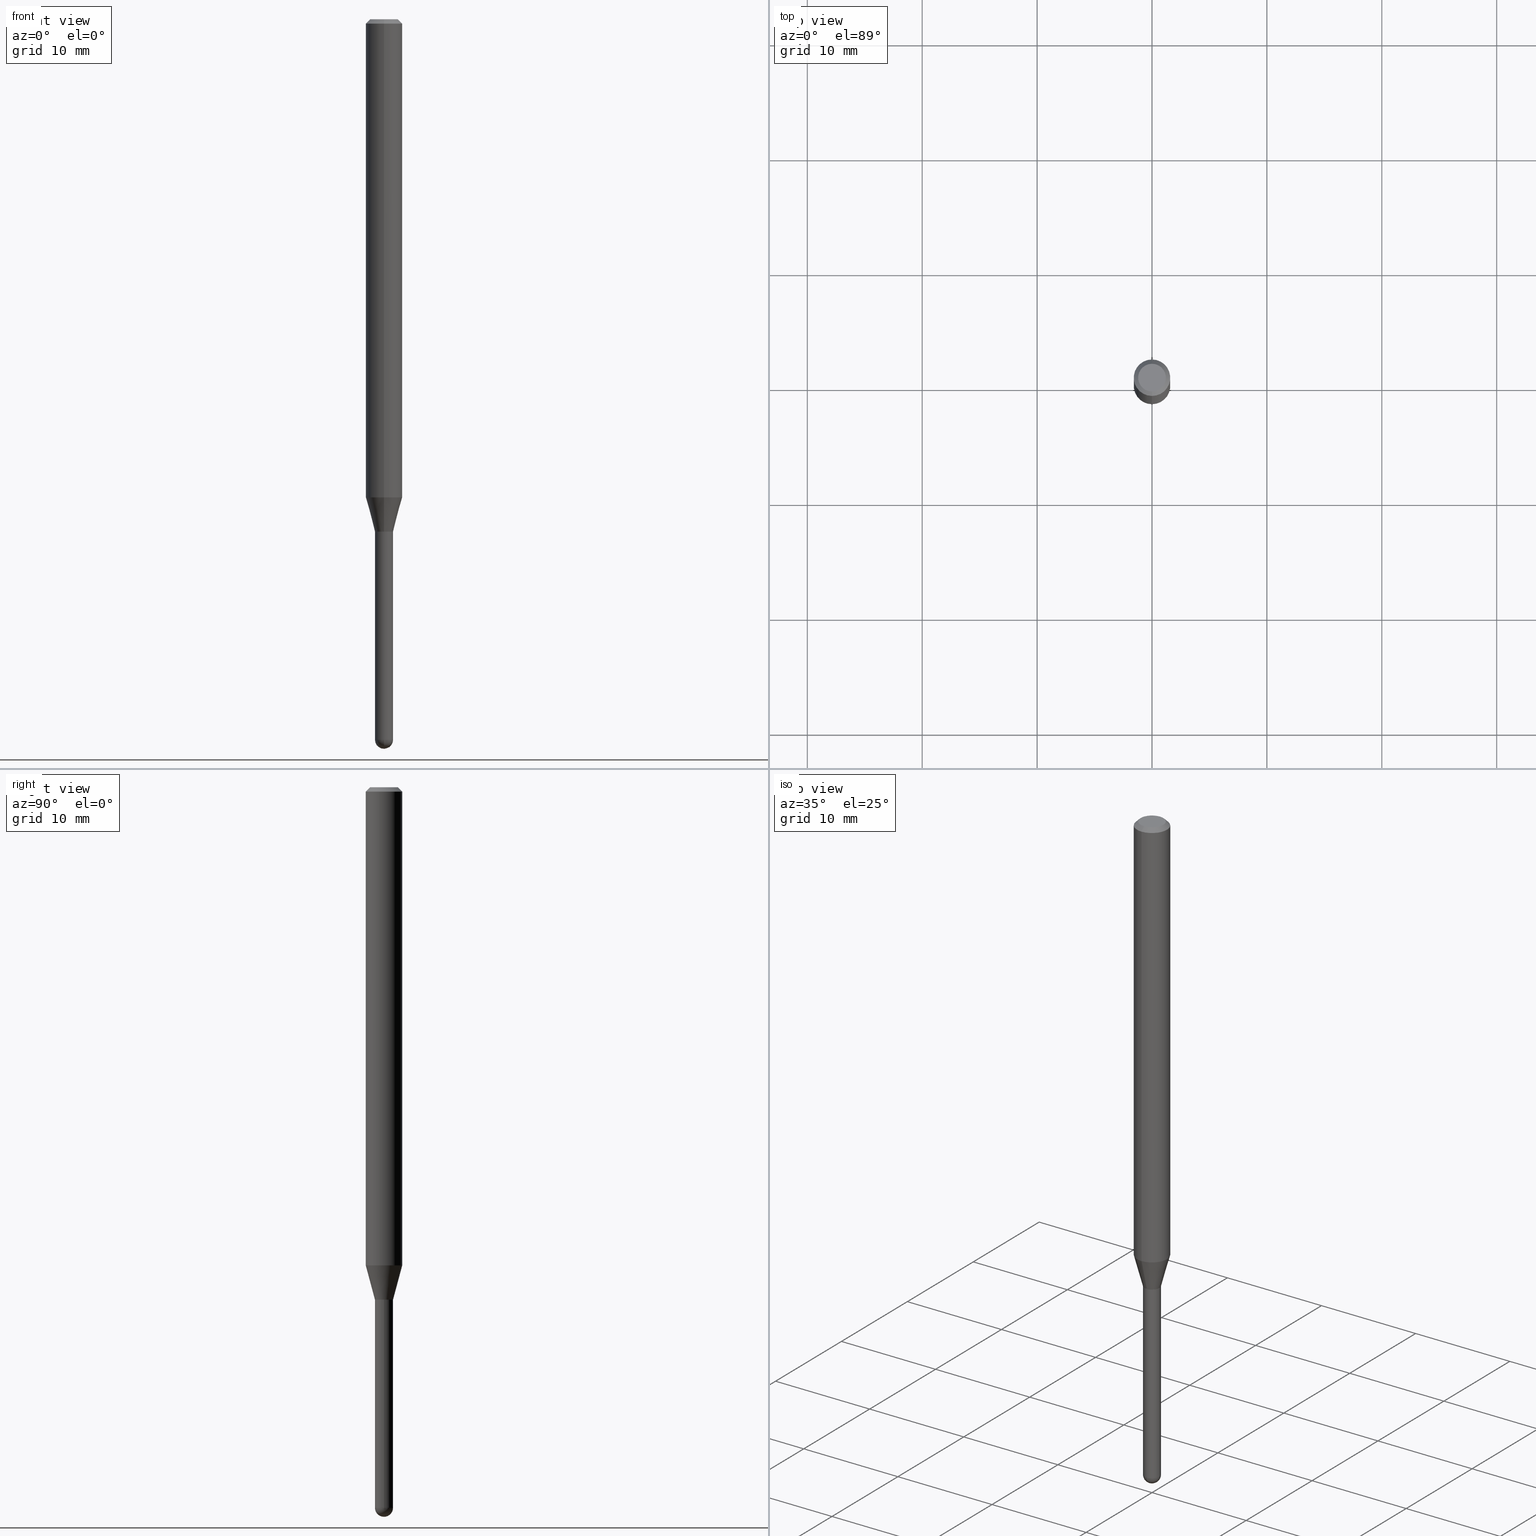
[diagram: canonical four-view strip — front | top / right | iso, engineering-drawing reading convention]
A machine part, canonical four-view strip (front | top / right | iso — engineering-drawing reading convention). The complete STEP part file that produces these views, byte-faithful:
ISO-10303-21;
HEADER;
FILE_DESCRIPTION (( 'STEP AP203' ),
    '1' );
FILE_NAME ('04523.STEP',
    '2024-03-08T20:27:34',
    ( '' ),
    ( '' ),
    'SwSTEP 2.0',
    'SolidWorks 2023',
    '' );
FILE_SCHEMA (( 'CONFIG_CONTROL_DESIGN' ));
ENDSEC;

DATA;
#1 = CARTESIAN_POINT ( 'NONE',  ( 4.006786741925258835E-29, -5.720538463129382758E-15, -1.638440399561583716 ) ) ;
#2 = CARTESIAN_POINT ( 'NONE',  ( -2.164718430082737148E-16, -0.03099999999999992345, 1.082350584155898685E-16 ) ) ;
#3 = VECTOR ( 'NONE', #192, 39.37007874015748143 ) ;
#4 = ORIENTED_EDGE ( 'NONE', *, *, #229, .F. ) ;
#5 = ORGANIZATION ( 'UNSPECIFIED', 'UNSPECIFIED', '' ) ;
#6 = DIRECTION ( 'NONE',  ( -2.445488247846794211E-29, 3.491453497277101165E-15, 1.000000000000000000 ) ) ;
#7 = FACE_OUTER_BOUND ( 'NONE', #284, .T. ) ;
#8 = ORIENTED_EDGE ( 'NONE', *, *, #494, .T. ) ;
#9 = EDGE_CURVE ( 'NONE', #280, #169, #93, .T. ) ;
#10 = CARTESIAN_POINT ( 'NONE',  ( 0.000000000000000000, 0.000000000000000000, 0.000000000000000000 ) ) ;
#11 = EDGE_LOOP ( 'NONE', ( #209, #378, #173, #126 ) ) ;
#12 =( NAMED_UNIT ( * ) SI_UNIT ( $, .STERADIAN. ) SOLID_ANGLE_UNIT ( ) );
#13 = DIRECTION ( 'NONE',  ( -6.982962677686265922E-15, -1.000000000000000000, 4.370956789862821150E-15 ) ) ;
#14 = ORIENTED_EDGE ( 'NONE', *, *, #9, .F. ) ;
#15 = DATE_AND_TIME ( #184, #154 ) ;
#16 = CC_DESIGN_APPROVAL ( #350, ( #349 ) ) ;
#17 = DIRECTION ( 'NONE',  ( -1.807323732225375499E-15, -0.2588190451025246808, 0.9659258262890673130 ) ) ;
#18 = CARTESIAN_POINT ( 'NONE',  ( -4.364351673553912750E-16, -0.06250000000000005551, -0.01499999999999984852 ) ) ;
#19 = APPLICATION_CONTEXT ( 'configuration controlled 3d designs of mechanical parts and assemblies' ) ;
#20 = PERSON_AND_ORGANIZATION_ROLE ( 'creator' ) ;
#21 = CARTESIAN_POINT ( 'NONE',  ( 2.164718430083171761E-16, 0.03099999999999386927, -1.756000000000000005 ) ) ;
#22 = EDGE_LOOP ( 'NONE', ( #300, #4 ) ) ;
#23 = SECURITY_CLASSIFICATION_LEVEL ( 'unclassified' ) ;
#24 = DIRECTION ( 'NONE',  ( -6.982962677686265922E-15, -1.000000000000000000, 3.491453497277101165E-15 ) ) ;
#25 = VERTEX_POINT ( 'NONE', #18 ) ;
#26 = DATE_AND_TIME ( #144, #112 ) ;
#27 = CIRCLE ( 'NONE', #311, 0.03099999999999999978 ) ;
#28 = EDGE_CURVE ( 'NONE', #385, #44, #457, .T. ) ;
#29 = APPROVAL_ROLE ( '' ) ;
#30 = ORIENTED_EDGE ( 'NONE', *, *, #69, .F. ) ;
#31 = PLANE ( 'NONE',  #142 ) ;
#32 = CIRCLE ( 'NONE', #67, 0.04749999999999999362 ) ;
#33 = FACE_OUTER_BOUND ( 'NONE', #295, .T. ) ;
#34 = EDGE_CURVE ( 'NONE', #302, #25, #111, .T. ) ;
#35 = DIRECTION ( 'NONE',  ( -6.982962677686265922E-15, -1.000000000000000000, 0.000000000000000000 ) ) ;
#36 = DIRECTION ( 'NONE',  ( -2.445468806185136597E-29, 3.491481338843145583E-15, 1.000000000000000000 ) ) ;
#37 = CONICAL_SURFACE ( 'NONE', #177, 0.03099999999999992345, 0.2617993877991570129 ) ;
#38 = DIRECTION ( 'NONE',  ( -6.982962677686265922E-15, -1.000000000000000000, 0.000000000000000000 ) ) ;
#39 = ORIENTED_EDGE ( 'NONE', *, *, #9, .T. ) ;
#40 = LINE ( 'NONE', #2, #404 ) ;
#41 = ORIENTED_EDGE ( 'NONE', *, *, #124, .T. ) ;
#42 =( LENGTH_UNIT ( ) NAMED_UNIT ( * ) SI_UNIT ( $, .METRE. ) );
#43 = DIRECTION ( 'NONE',  ( -2.445468806185136597E-29, 3.491481338843145583E-15, 1.000000000000000000 ) ) ;
#44 = VERTEX_POINT ( 'NONE', #264 ) ;
#45 = DIRECTION ( 'NONE',  ( 1.000000000000000000, -6.982962677686266711E-15, 4.876176775795935232E-29 ) ) ;
#46 = VERTEX_POINT ( 'NONE', #228 ) ;
#47 = DIRECTION ( 'NONE',  ( -2.445488247846794211E-29, 3.491453497277101165E-15, 1.000000000000000000 ) ) ;
#48 = CARTESIAN_POINT ( 'NONE',  ( 3.668232371770207414E-31, -5.237180245915674822E-17, -0.01500000000000006710 ) ) ;
#49 = EDGE_LOOP ( 'NONE', ( #396, #102, #272, #500 ) ) ;
#50 = CARTESIAN_POINT ( 'NONE',  ( 3.668232371770207414E-31, -5.237180245915674822E-17, -0.01500000000000006710 ) ) ;
#51 = ADVANCED_FACE ( 'NONE', ( #195 ), #497, .T. ) ;
#52 = AXIS2_PLACEMENT_3D ( 'NONE', #443, #509, #287 ) ;
#53 = PERSON_AND_ORGANIZATION ( #464, #5 ) ;
#54 = AXIS2_PLACEMENT_3D ( 'NONE', #365, #6, #127 ) ;
#55 = DIRECTION ( 'NONE',  ( -2.445488247846794211E-29, 3.491453497277101165E-15, 1.000000000000000000 ) ) ;
#56 = DIRECTION ( 'NONE',  ( -1.000000000000000000, 7.105427357601001070E-15, -4.926315508542082329E-29 ) ) ;
#57 = ORIENTED_EDGE ( 'NONE', *, *, #259, .T. ) ;
#58 = APPROVAL_ROLE ( '' ) ;
#59 = ORIENTED_EDGE ( 'NONE', *, *, #398, .T. ) ;
#60 = CLOSED_SHELL ( 'NONE', ( #191, #110, #343, #80, #185 ) ) ;
#61 = EDGE_CURVE ( 'NONE', #483, #496, #254, .T. ) ;
#62 = CC_DESIGN_APPROVAL ( #410, ( #501 ) ) ;
#63 = VERTEX_POINT ( 'NONE', #113 ) ;
#64 = FACE_OUTER_BOUND ( 'NONE', #11, .T. ) ;
#65 = SPHERICAL_SURFACE ( 'NONE', #96, 0.03099999999999987835 ) ;
#66 = AXIS2_PLACEMENT_3D ( 'NONE', #503, #437, #474 ) ;
#67 = AXIS2_PLACEMENT_3D ( 'NONE', #331, #366, #334 ) ;
#68 = LINE ( 'NONE', #224, #162 ) ;
#69 = EDGE_CURVE ( 'NONE', #461, #169, #231, .T. ) ;
#70 = CARTESIAN_POINT ( 'NONE',  ( -4.287811248607203282E-16, -0.06250000000000005551, -0.01499999999999984852 ) ) ;
#71 = VECTOR ( 'NONE', #268, 39.37007874015748143 ) ;
#72 = DIRECTION ( 'NONE',  ( -2.445488247846794211E-29, 3.491453497277101165E-15, 1.000000000000000000 ) ) ;
#73 = AXIS2_PLACEMENT_3D ( 'NONE', #196, #36, #326 ) ;
#74 = EDGE_LOOP ( 'NONE', ( #466, #41 ) ) ;
#75 = CARTESIAN_POINT ( 'NONE',  ( 6.112346507714613972E-29, -8.730601549646543009E-15, -2.500000000000000000 ) ) ;
#76 = DIRECTION ( 'NONE',  ( -6.982962677686265922E-15, -1.000000000000000000, 3.483106191921935554E-15 ) ) ;
#77 = ORIENTED_EDGE ( 'NONE', *, *, #150, .T. ) ;
#78 = DIRECTION ( 'NONE',  ( -6.982962677686265922E-15, -1.000000000000000000, 0.000000000000000000 ) ) ;
#79 = DIRECTION ( 'NONE',  ( -2.445468806185136597E-29, 3.491481338843145583E-15, 1.000000000000000000 ) ) ;
#80 = ADVANCED_FACE ( 'NONE', ( #64 ), #65, .T. ) ;
#81 = ORIENTED_EDGE ( 'NONE', *, *, #150, .F. ) ;
#82 = DIRECTION ( 'NONE',  ( -2.445468806185136597E-29, 3.491481338843145583E-15, 1.000000000000000000 ) ) ;
#83 = LINE ( 'NONE', #395, #467 ) ;
#84 = AXIS2_PLACEMENT_3D ( 'NONE', #347, #109, #35 ) ;
#85 = CIRCLE ( 'NONE', #394, 0.03099999999999992345 ) ;
#86 = ORIENTED_EDGE ( 'NONE', *, *, #207, .F. ) ;
#87 = DIRECTION ( 'NONE',  ( -2.445488247846794211E-29, 3.491453497277101165E-15, 1.000000000000000000 ) ) ;
#88 = CARTESIAN_POINT ( 'NONE',  ( 0.000000000000000000, 0.000000000000000000, 0.000000000000000000 ) ) ;
#89 = ORIENTED_EDGE ( 'NONE', *, *, #114, .T. ) ;
#90 = DIRECTION ( 'NONE',  ( 1.000000000000000000, -6.982962677686270655E-15, 0.000000000000000000 ) ) ;
#91 = EDGE_CURVE ( 'NONE', #496, #244, #68, .T. ) ;
#92 = CARTESIAN_POINT ( 'NONE',  ( 4.006786741925258835E-29, -5.720538463129382758E-15, -1.638440399561583716 ) ) ;
#93 = LINE ( 'NONE', #251, #478 ) ;
#94 = COORDINATED_UNIVERSAL_TIME_OFFSET ( 5, 0, .BEHIND. ) ;
#95 = DIRECTION ( 'NONE',  ( 1.839019923739646069E-15, 0.2588190451025313976, 0.9659258262890653146 ) ) ;
#96 = AXIS2_PLACEMENT_3D ( 'NONE', #225, #506, #312 ) ;
#97 = AXIS2_PLACEMENT_3D ( 'NONE', #50, #256, #140 ) ;
#98 = APPROVAL_ROLE ( '' ) ;
#99 = DIRECTION ( 'NONE',  ( 6.982962677686265922E-15, 1.000000000000000000, 0.000000000000000000 ) ) ;
#100 = ORIENTED_EDGE ( 'NONE', *, *, #155, .F. ) ;
#101 = APPROVAL_STATUS ( 'not_yet_approved' ) ;
#102 = ORIENTED_EDGE ( 'NONE', *, *, #357, .T. ) ;
#103 = ADVANCED_FACE ( 'NONE', ( #387 ), #31, .F. ) ;
#104 = EDGE_LOOP ( 'NONE', ( #14, #166, #234, #463 ) ) ;
#105 = CC_DESIGN_PERSON_AND_ORGANIZATION_ASSIGNMENT ( #493, #335, ( #433 ) ) ;
#106 = ADVANCED_BREP_SHAPE_REPRESENTATION ( '04523', ( #115, #452, #307 ), #373 ) ;
#107 = CARTESIAN_POINT ( 'NONE',  ( 0.000000000000000000, 0.000000000000000000, 0.000000000000000000 ) ) ;
#108 = AXIS2_PLACEMENT_3D ( 'NONE', #180, #414, #99 ) ;
#109 = DIRECTION ( 'NONE',  ( -2.445488247846794211E-29, 3.491453497277101165E-15, 1.000000000000000000 ) ) ;
#110 = ADVANCED_FACE ( 'NONE', ( #33 ), #469, .T. ) ;
#111 = LINE ( 'NONE', #70, #341 ) ;
#112 = LOCAL_TIME ( 15, 27, 34.00000000000000000, #293 ) ;
#113 = CARTESIAN_POINT ( 'NONE',  ( -2.129803616693881339E-16, -0.03050000000000612638, -1.756000000000000005 ) ) ;
#114 = EDGE_CURVE ( 'NONE', #450, #44, #116, .T. ) ;
#115 = MANIFOLD_SOLID_BREP ( 'Body-Move/Copy2[1]', #60 ) ;
#116 = LINE ( 'NONE', #269, #3 ) ;
#117 = CARTESIAN_POINT ( 'NONE',  ( 3.668232371770207414E-31, -5.237180245915674822E-17, -0.01500000000000006710 ) ) ;
#118 = VERTEX_POINT ( 'NONE', #340 ) ;
#119 = PRODUCT_DEFINITION_SHAPE ( 'NONE', 'NONE',  #501 ) ;
#120 = CARTESIAN_POINT ( 'NONE',  ( 0.03099999999999999978, -6.347513074016838623E-15, -1.756000000000000005 ) ) ;
#121 = VECTOR ( 'NONE', #95, 39.37007874015748854 ) ;
#122 = ORIENTED_EDGE ( 'NONE', *, *, #445, .F. ) ;
#123 = DIRECTION ( 'NONE',  ( -2.445488247846794211E-29, 3.491453497277101165E-15, 1.000000000000000000 ) ) ;
#124 = EDGE_CURVE ( 'NONE', #302, #461, #298, .T. ) ;
#125 = DIRECTION ( 'NONE',  ( -2.445488247846794211E-29, 3.491453497277101165E-15, 1.000000000000000000 ) ) ;
#126 = ORIENTED_EDGE ( 'NONE', *, *, #61, .F. ) ;
#127 = DIRECTION ( 'NONE',  ( -6.982962677686265922E-15, -1.000000000000000000, 0.000000000000000000 ) ) ;
#128 = CARTESIAN_POINT ( 'NONE',  ( -0.03099999999999999978, -7.155486080220514781E-15, -1.756000000000000005 ) ) ;
#129 = ORIENTED_EDGE ( 'NONE', *, *, #460, .T. ) ;
#130 = DIRECTION ( 'NONE',  ( -6.982962677686265922E-15, -1.000000000000000000, 0.000000000000000000 ) ) ;
#131 = CARTESIAN_POINT ( 'NONE',  ( 0.000000000000000000, 0.000000000000000000, 0.000000000000000000 ) ) ;
#132 = CIRCLE ( 'NONE', #359, 0.03049999999999999586 ) ;
#133 = ORIENTED_EDGE ( 'NONE', *, *, #61, .T. ) ;
#134 = EDGE_CURVE ( 'NONE', #320, #454, #202, .T. ) ;
#135 = LOCAL_TIME ( 15, 27, 34.00000000000000000, #94 ) ;
#136 = DIRECTION ( 'NONE',  ( -6.982962677686265922E-15, -1.000000000000000000, 0.000000000000000000 ) ) ;
#137 = FACE_OUTER_BOUND ( 'NONE', #178, .T. ) ;
#138 = ORIENTED_EDGE ( 'NONE', *, *, #145, .F. ) ;
#139 = MECHANICAL_CONTEXT ( 'NONE', #19, 'mechanical' ) ;
#140 = DIRECTION ( 'NONE',  ( 6.982962677686265922E-15, 1.000000000000000000, -3.483106191921935554E-15 ) ) ;
#141 = DIRECTION ( 'NONE',  ( -2.445488247846794211E-29, 3.491453497277101165E-15, 1.000000000000000000 ) ) ;
#142 = AXIS2_PLACEMENT_3D ( 'NONE', #156, #388, #344 ) ;
#143 = CONICAL_SURFACE ( 'NONE', #97, 0.06250000000000000000, 0.7853981633974483900 ) ;
#144 = CALENDAR_DATE ( 2024, 8, 3 ) ;
#145 = EDGE_CURVE ( 'NONE', #118, #368, #40, .T. ) ;
#146 = ORIENTED_EDGE ( 'NONE', *, *, #28, .F. ) ;
#147 = PERSON_AND_ORGANIZATION ( #464, #5 ) ;
#148 = ORIENTED_EDGE ( 'NONE', *, *, #69, .T. ) ;
#149 = DIRECTION ( 'NONE',  ( 0.000000000000000000, 0.000000000000000000, 1.000000000000000000 ) ) ;
#150 = EDGE_CURVE ( 'NONE', #25, #169, #188, .T. ) ;
#151 = AXIS2_PLACEMENT_3D ( 'NONE', #21, #294, #456 ) ;
#152 = CARTESIAN_POINT ( 'NONE',  ( 2.167155344068734463E-16, 0.03049999999999386882, -1.756000000000000005 ) ) ;
#153 = CIRCLE ( 'NONE', #371, 0.03049999999999999586 ) ;
#154 = LOCAL_TIME ( 15, 27, 34.00000000000000000, #222 ) ;
#155 = EDGE_CURVE ( 'NONE', #46, #25, #401, .T. ) ;
#156 = CARTESIAN_POINT ( 'NONE',  ( 3.316907271900976096E-16, 0.04749999999999999362, -1.985948193840539623E-16 ) ) ;
#157 = DIRECTION ( 'NONE',  ( -2.445488247846794211E-29, 3.491453497277101165E-15, 1.000000000000000000 ) ) ;
#158 = FACE_OUTER_BOUND ( 'NONE', #408, .T. ) ;
#159 = DIRECTION ( 'NONE',  ( -2.445488247846794211E-29, 3.491453497277101165E-15, 1.000000000000000000 ) ) ;
#160 = ORIENTED_EDGE ( 'NONE', *, *, #339, .F. ) ;
#161 = CARTESIAN_POINT ( 'NONE',  ( 4.294277363218970449E-29, -6.130992341218589955E-15, -1.756000000000000005 ) ) ;
#162 = VECTOR ( 'NONE', #473, 39.37007874015748143 ) ;
#163 = DIRECTION ( 'NONE',  ( 1.000000000000000000, -6.982962677686266711E-15, 4.876176775795935232E-29 ) ) ;
#164 = CIRCLE ( 'NONE', #507, 0.06250000000000000000 ) ;
#165 = CIRCLE ( 'NONE', #448, 0.03099999999999992345 ) ;
#166 = ORIENTED_EDGE ( 'NONE', *, *, #283, .T. ) ;
#167 = CARTESIAN_POINT ( 'NONE',  ( -2.202682480855702151E-16, -0.03100000000000856237, -2.469000000000000306 ) ) ;
#168 = DIRECTION ( 'NONE',  ( -2.445468806185136877E-29, 3.491481338843145188E-15, 1.000000000000000000 ) ) ;
#169 = VERTEX_POINT ( 'NONE', #247 ) ;
#170 = DIRECTION ( 'NONE',  ( -6.982962677686265922E-15, -1.000000000000000000, 0.000000000000000000 ) ) ;
#171 = DIRECTION ( 'NONE',  ( -2.445488247846794211E-29, 3.491453497277101165E-15, 1.000000000000000000 ) ) ;
#172 = CC_DESIGN_PERSON_AND_ORGANIZATION_ASSIGNMENT ( #217, #262, ( #393 ) ) ;
#173 = ORIENTED_EDGE ( 'NONE', *, *, #232, .F. ) ;
#174 = DIRECTION ( 'NONE',  ( -2.445488247846794211E-29, 3.491453497277101165E-15, 1.000000000000000000 ) ) ;
#175 = UNCERTAINTY_MEASURE_WITH_UNIT (LENGTH_MEASURE( 1.000000000000000082E-05 ), #285, 'distance_accuracy_value', 'NONE');
#176 = FACE_OUTER_BOUND ( 'NONE', #361, .T. ) ;
#177 = AXIS2_PLACEMENT_3D ( 'NONE', #499, #55, #377 ) ;
#178 = EDGE_LOOP ( 'NONE', ( #129, #337 ) ) ;
#179 = CONICAL_SURFACE ( 'NONE', #468, 0.03049999999999999586, 0.7853981633974739252 ) ;
#180 = CARTESIAN_POINT ( 'NONE',  ( 6.035211466974647334E-29, -8.624263830681084699E-15, -2.469000000000000306 ) ) ;
#181 = CALENDAR_DATE ( 2024, 8, 3 ) ;
#182 = LINE ( 'NONE', #215, #472 ) ;
#183 = EDGE_LOOP ( 'NONE', ( #441, #200, #332, #206 ) ) ;
#184 = CALENDAR_DATE ( 2024, 8, 3 ) ;
#185 = ADVANCED_FACE ( 'NONE', ( #204 ), #360, .T. ) ;
#186 = LINE ( 'NONE', #411, #121 ) ;
#187 = ORIENTED_EDGE ( 'NONE', *, *, #91, .F. ) ;
#188 = CIRCLE ( 'NONE', #470, 0.06250000000000000000 ) ;
#189 = AXIS2_PLACEMENT_3D ( 'NONE', #48, #291, #376 ) ;
#190 = APPROVAL_DATE_TIME ( #379, #289 ) ;
#191 = ADVANCED_FACE ( 'NONE', ( #7 ), #208, .T. ) ;
#192 = DIRECTION ( 'NONE',  ( -2.445488247846794211E-29, 3.491453497277101559E-15, 1.000000000000000000 ) ) ;
#193 = AXIS2_PLACEMENT_3D ( 'NONE', #413, #174, #78 ) ;
#194 = EDGE_CURVE ( 'NONE', #450, #118, #85, .T. ) ;
#195 = FACE_OUTER_BOUND ( 'NONE', #353, .T. ) ;
#196 = CARTESIAN_POINT ( 'NONE',  ( 4.294243223661099859E-29, -6.131041231008564292E-15, -1.756000000000000005 ) ) ;
#197 = DIRECTION ( 'NONE',  ( -2.445468806185136597E-29, 3.491481338843145583E-15, 1.000000000000000000 ) ) ;
#198 = ORIENTED_EDGE ( 'NONE', *, *, #194, .F. ) ;
#199 = DIRECTION ( 'NONE',  ( -2.445488247846794211E-29, 3.491453497277101559E-15, 1.000000000000000000 ) ) ;
#200 = ORIENTED_EDGE ( 'NONE', *, *, #422, .F. ) ;
#201 = APPLICATION_PROTOCOL_DEFINITION ( 'international standard', 'config_control_design', 1994, #19 ) ;
#202 = CIRCLE ( 'NONE', #358, 0.03099999999999999978 ) ;
#203 = CIRCLE ( 'NONE', #498, 0.03099999999999999978 ) ;
#204 = FACE_OUTER_BOUND ( 'NONE', #316, .T. ) ;
#205 = AXIS2_PLACEMENT_3D ( 'NONE', #1, #242, #447 ) ;
#206 = ORIENTED_EDGE ( 'NONE', *, *, #505, .T. ) ;
#207 = EDGE_CURVE ( 'NONE', #454, #241, #355, .T. ) ;
#208 = CYLINDRICAL_SURFACE ( 'NONE', #286, 0.03099999999999999978 ) ;
#209 = ORIENTED_EDGE ( 'NONE', *, *, #398, .F. ) ;
#210 = PLANE ( 'NONE',  #151 ) ;
#211 = ORIENTED_EDGE ( 'NONE', *, *, #322, .T. ) ;
#212 = PERSON_AND_ORGANIZATION ( #464, #5 ) ;
#213 = CARTESIAN_POINT ( 'NONE',  ( 4.440892098501024536E-16, 0.06249999999999425460, -1.638440399561583938 ) ) ;
#214 = DATE_AND_TIME ( #260, #504 ) ;
#215 = CARTESIAN_POINT ( 'NONE',  ( -2.164718430082307712E-16, -0.03100000000000605049, -1.756000000000000005 ) ) ;
#216 = ADVANCED_FACE ( 'NONE', ( #323 ), #363, .T. ) ;
#217 = PERSON_AND_ORGANIZATION ( #464, #5 ) ;
#218 = CARTESIAN_POINT ( 'NONE',  ( 2.164718430083341860E-16, 0.03099999999999131575, -2.469000000000000306 ) ) ;
#219 = ORIENTED_EDGE ( 'NONE', *, *, #134, .F. ) ;
#220 = DATE_AND_TIME ( #333, #135 ) ;
#221 = CIRCLE ( 'NONE', #306, 0.06250000000000000000 ) ;
#222 = COORDINATED_UNIVERSAL_TIME_OFFSET ( 5, 0, .BEHIND. ) ;
#223 = ORIENTED_EDGE ( 'NONE', *, *, #505, .F. ) ;
#224 = CARTESIAN_POINT ( 'NONE',  ( 0.03099999999999999978, -2.164718430082742572E-16, 1.511614800496739984E-30 ) ) ;
#225 = CARTESIAN_POINT ( 'NONE',  ( 6.035211466974647334E-29, -8.624263830681084699E-15, -2.469000000000000306 ) ) ;
#226 = APPLICATION_CONTEXT ( 'configuration controlled 3d designs of mechanical parts and assemblies' ) ;
#227 = AXIS2_PLACEMENT_3D ( 'NONE', #392, #230, #391 ) ;
#228 = CARTESIAN_POINT ( 'NONE',  ( -4.364351673553516840E-16, -0.06250000000000574540, -1.638440399561583494 ) ) ;
#229 = EDGE_CURVE ( 'NONE', #385, #63, #153, .T. ) ;
#230 = DIRECTION ( 'NONE',  ( -1.000000000000000000, 6.982962677686265922E-15, -4.883557194083112340E-29 ) ) ;
#231 = LINE ( 'NONE', #429, #71 ) ;
#232 = EDGE_CURVE ( 'NONE', #496, #320, #416, .T. ) ;
#233 = DIRECTION ( 'NONE',  ( -2.445468806185136597E-29, 3.491481338843145583E-15, 1.000000000000000000 ) ) ;
#234 = ORIENTED_EDGE ( 'NONE', *, *, #155, .T. ) ;
#235 = CARTESIAN_POINT ( 'NONE',  ( 4.294243223661099859E-29, -6.131041231008564292E-15, -1.756000000000000005 ) ) ;
#236 = CARTESIAN_POINT ( 'NONE',  ( 4.294277363218970449E-29, -6.130992341218589955E-15, -1.756000000000000005 ) ) ;
#237 = EDGE_LOOP ( 'NONE', ( #487, #39, #81, #100 ) ) ;
#238 = CARTESIAN_POINT ( 'NONE',  ( 3.668232371770207414E-31, -5.237180245915674822E-17, -0.01500000000000006710 ) ) ;
#239 = DESIGN_CONTEXT ( 'detailed design', #226, 'design' ) ;
#240 = DIRECTION ( 'NONE',  ( -2.445488247846794211E-29, 3.491453497277101559E-15, 1.000000000000000000 ) ) ;
#241 = VERTEX_POINT ( 'NONE', #128 ) ;
#242 = DIRECTION ( 'NONE',  ( -2.445488247846794211E-29, 3.491453497277101165E-15, 1.000000000000000000 ) ) ;
#243 = DIRECTION ( 'NONE',  ( -4.937700262164674260E-15, -0.7071067811865632269, 0.7071067811865319186 ) ) ;
#244 = VERTEX_POINT ( 'NONE', #120 ) ;
#245 = EDGE_CURVE ( 'NONE', #241, #244, #299, .T. ) ;
#246 = CARTESIAN_POINT ( 'NONE',  ( 4.294277363218970449E-29, -6.130992341218589955E-15, -1.756000000000000005 ) ) ;
#247 = CARTESIAN_POINT ( 'NONE',  ( 4.440892098501028481E-16, 0.06249999999999995143, -0.01500000000000028394 ) ) ;
#248 = ORIENTED_EDGE ( 'NONE', *, *, #427, .T. ) ;
#249 = LENGTH_MEASURE_WITH_UNIT ( LENGTH_MEASURE( 0.02539999999999999897 ), #42 );
#250 = CARTESIAN_POINT ( 'NONE',  ( -3.773273898774340269E-16, -0.04749999999999999362, 1.003424845938789771E-16 ) ) ;
#251 = CARTESIAN_POINT ( 'NONE',  ( 4.440892098500625669E-16, 0.06250000000000000000, -2.182158435798188228E-16 ) ) ;
#252 = APPROVAL_DATE_TIME ( #220, #350 ) ;
#253 = ADVANCED_FACE ( 'NONE', ( #352 ), #282, .T. ) ;
#254 = CIRCLE ( 'NONE', #305, 0.03099999999999999978 ) ;
#255 = AXIS2_PLACEMENT_3D ( 'NONE', #490, #141, #24 ) ;
#256 = DIRECTION ( 'NONE',  ( 2.445488247846794211E-29, -3.491453497277101165E-15, -1.000000000000000000 ) ) ;
#257 = ORIENTED_EDGE ( 'NONE', *, *, #494, .F. ) ;
#258 = PERSON_AND_ORGANIZATION_ROLE ( 'design_supplier' ) ;
#259 = EDGE_CURVE ( 'NONE', #63, #368, #83, .T. ) ;
#260 = CALENDAR_DATE ( 2024, 8, 3 ) ;
#261 = AXIS2_PLACEMENT_3D ( 'NONE', #236, #397, #417 ) ;
#262 = PERSON_AND_ORGANIZATION_ROLE ( 'design_owner' ) ;
#263 = CARTESIAN_POINT ( 'NONE',  ( 6.037862482471103495E-29, -8.620467425603728566E-15, -2.469000000000000306 ) ) ;
#264 = CARTESIAN_POINT ( 'NONE',  ( 2.202682480856726685E-16, 0.03099999999999368538, -1.755500000000000060 ) ) ;
#265 = ADVANCED_FACE ( 'NONE', ( #314 ), #407, .F. ) ;
#266 = DIRECTION ( 'NONE',  ( -2.445468806185136597E-29, 3.491481338843145583E-15, 1.000000000000000000 ) ) ;
#267 = CONICAL_SURFACE ( 'NONE', #189, 0.06250000000000000000, 0.7853981633974483900 ) ;
#268 = DIRECTION ( 'NONE',  ( 4.937700262164548042E-15, 0.7071067811865451302, -0.7071067811865499042 ) ) ;
#269 = CARTESIAN_POINT ( 'NONE',  ( 2.202682480856304644E-16, 0.03099999999999992345, -1.082350584155898685E-16 ) ) ;
#270 = ADVANCED_FACE ( 'NONE', ( #477 ), #276, .F. ) ;
#271 = DIRECTION ( 'NONE',  ( 1.000000000000000000, -6.982962677686270655E-15, 0.000000000000000000 ) ) ;
#272 = ORIENTED_EDGE ( 'NONE', *, *, #436, .F. ) ;
#273 = LOCAL_TIME ( 15, 27, 34.00000000000000000, #338 ) ;
#274 = VECTOR ( 'NONE', #428, 39.37007874015748143 ) ;
#275 = CC_DESIGN_APPROVAL ( #289, ( #433 ) ) ;
#276 = PLANE ( 'NONE',  #261 ) ;
#277 = ORIENTED_EDGE ( 'NONE', *, *, #229, .T. ) ;
#278 = CARTESIAN_POINT ( 'NONE',  ( 0.03099999999999999978, -7.592226171314421154E-15, -2.469000000000000306 ) ) ;
#279 = CARTESIAN_POINT ( 'NONE',  ( -4.364351673553916201E-16, -0.06250000000000000000, 2.182158435798188228E-16 ) ) ;
#280 = VERTEX_POINT ( 'NONE', #213 ) ;
#281 = DIRECTION ( 'NONE',  ( -6.982962677686265922E-15, -1.000000000000000000, 3.483106191921935554E-15 ) ) ;
#282 = CYLINDRICAL_SURFACE ( 'NONE', #52, 0.06250000000000000000 ) ;
#283 = EDGE_CURVE ( 'NONE', #280, #46, #221, .T. ) ;
#284 = EDGE_LOOP ( 'NONE', ( #426, #288, #356, #187, #479 ) ) ;
#285 =( CONVERSION_BASED_UNIT ( 'INCH', #249 ) LENGTH_UNIT ( ) NAMED_UNIT ( #489 ) );
#286 = AXIS2_PLACEMENT_3D ( 'NONE', #88, #43, #163 ) ;
#287 = DIRECTION ( 'NONE',  ( -6.982962677686265922E-15, -1.000000000000000000, 3.491453497277101165E-15 ) ) ;
#288 = ORIENTED_EDGE ( 'NONE', *, *, #207, .T. ) ;
#289 = APPROVAL ( #101, 'UNSPECIFIED' ) ;
#290 = FACE_OUTER_BOUND ( 'NONE', #324, .T. ) ;
#291 = DIRECTION ( 'NONE',  ( 2.445488247846794211E-29, -3.491453497277101165E-15, -1.000000000000000000 ) ) ;
#292 = ORIENTED_EDGE ( 'NONE', *, *, #431, .T. ) ;
#293 = COORDINATED_UNIVERSAL_TIME_OFFSET ( 5, 0, .BEHIND. ) ;
#294 = DIRECTION ( 'NONE',  ( 2.438088387897960049E-29, -3.491481338843145188E-15, -1.000000000000000000 ) ) ;
#295 = EDGE_LOOP ( 'NONE', ( #160, #59, #122, #219 ) ) ;
#296 = CC_DESIGN_DATE_AND_TIME_ASSIGNMENT ( #26, #301, ( #349 ) ) ;
#297 = FACE_OUTER_BOUND ( 'NONE', #49, .T. ) ;
#298 = CIRCLE ( 'NONE', #66, 0.04749999999999999362 ) ;
#299 = CIRCLE ( 'NONE', #73, 0.03099999999999999978 ) ;
#300 = ORIENTED_EDGE ( 'NONE', *, *, #431, .F. ) ;
#301 = DATE_TIME_ROLE ( 'classification_date' ) ;
#302 = VERTEX_POINT ( 'NONE', #250 ) ;
#303 = ORIENTED_EDGE ( 'NONE', *, *, #34, .F. ) ;
#304 = CC_DESIGN_PERSON_AND_ORGANIZATION_ASSIGNMENT ( #147, #423, ( #349 ) ) ;
#305 = AXIS2_PLACEMENT_3D ( 'NONE', #263, #266, #309 ) ;
#306 = AXIS2_PLACEMENT_3D ( 'NONE', #92, #372, #13 ) ;
#307 = AXIS2_PLACEMENT_3D ( 'NONE', #107, #149, #458 ) ;
#308 = ADVANCED_FACE ( 'NONE', ( #297 ), #37, .T. ) ;
#309 = DIRECTION ( 'NONE',  ( 1.000000000000000000, -6.982962677686270655E-15, 0.000000000000000000 ) ) ;
#310 = CLOSED_SHELL ( 'NONE', ( #380, #510, #346, #253, #308, #471, #216, #386, #103, #270, #51, #265 ) ) ;
#311 = AXIS2_PLACEMENT_3D ( 'NONE', #235, #442, #90 ) ;
#312 = DIRECTION ( 'NONE',  ( 6.982962677686265922E-15, 1.000000000000000000, 0.000000000000000000 ) ) ;
#313 = CC_DESIGN_PERSON_AND_ORGANIZATION_ASSIGNMENT ( #53, #20, ( #501 ) ) ;
#314 = FACE_OUTER_BOUND ( 'NONE', #183, .T. ) ;
#315 = DIRECTION ( 'NONE',  ( -6.982962677686265922E-15, -1.000000000000000000, 3.491453497277101165E-15 ) ) ;
#316 = EDGE_LOOP ( 'NONE', ( #86, #421, #133, #502, #485 ) ) ;
#317 = CARTESIAN_POINT ( 'NONE',  ( 3.840629472727447874E-16, 0.04749999999999999362, -2.313455976474456035E-16 ) ) ;
#318 = AXIS2_PLACEMENT_3D ( 'NONE', #420, #56, #354 ) ;
#319 = CARTESIAN_POINT ( 'NONE',  ( -0.03099999999999999978, 2.202682480856310560E-16, -1.524869877979020612E-30 ) ) ;
#320 = VERTEX_POINT ( 'NONE', #218 ) ;
#321 =( NAMED_UNIT ( * ) PLANE_ANGLE_UNIT ( ) SI_UNIT ( $, .RADIAN. ) );
#322 = EDGE_CURVE ( 'NONE', #118, #46, #182, .T. ) ;
#323 = FACE_OUTER_BOUND ( 'NONE', #104, .T. ) ;
#324 = EDGE_LOOP ( 'NONE', ( #292, #434, #223, #364 ) ) ;
#325 = CARTESIAN_POINT ( 'NONE',  ( -0.03099999999999999978, -7.155486080220514781E-15, -2.469000000000000306 ) ) ;
#326 = DIRECTION ( 'NONE',  ( 1.000000000000000000, -6.982962677686270655E-15, 0.000000000000000000 ) ) ;
#327 = EDGE_LOOP ( 'NONE', ( #198, #89, #8, #138 ) ) ;
#328 = AXIS2_PLACEMENT_3D ( 'NONE', #440, #79, #271 ) ;
#329 = CYLINDRICAL_SURFACE ( 'NONE', #255, 0.03099999999999992345 ) ;
#330 = PERSON_AND_ORGANIZATION ( #464, #5 ) ;
#331 = CARTESIAN_POINT ( 'NONE',  ( 1.601832867019210583E-45, -2.286956386125313343E-31, -6.550155652678330701E-17 ) ) ;
#332 = ORIENTED_EDGE ( 'NONE', *, *, #145, .T. ) ;
#333 = CALENDAR_DATE ( 2024, 8, 3 ) ;
#334 = DIRECTION ( 'NONE',  ( -6.982962677686266711E-15, -1.000000000000000000, 3.491453497277101559E-15 ) ) ;
#335 = PERSON_AND_ORGANIZATION_ROLE ( 'creator' ) ;
#336 = VECTOR ( 'NONE', #199, 39.37007874015748143 ) ;
#337 = ORIENTED_EDGE ( 'NONE', *, *, #245, .T. ) ;
#338 = COORDINATED_UNIVERSAL_TIME_OFFSET ( 5, 0, .BEHIND. ) ;
#339 = EDGE_CURVE ( 'NONE', #418, #320, #405, .T. ) ;
#340 = CARTESIAN_POINT ( 'NONE',  ( -2.164718430082307712E-16, -0.03100000000000605049, -1.756000000000000005 ) ) ;
#341 = VECTOR ( 'NONE', #390, 39.37007874015748143 ) ;
#342 = AXIS2_PLACEMENT_3D ( 'NONE', #131, #72, #315 ) ;
#343 = ADVANCED_FACE ( 'NONE', ( #137 ), #210, .F. ) ;
#344 = DIRECTION ( 'NONE',  ( 6.982962677686265922E-15, 1.000000000000000000, -3.491453497277101559E-15 ) ) ;
#345 = PRODUCT_RELATED_PRODUCT_CATEGORY ( 'detail', '', ( #393 ) ) ;
#346 = ADVANCED_FACE ( 'NONE', ( #176 ), #267, .T. ) ;
#347 = CARTESIAN_POINT ( 'NONE',  ( 4.294277363218970449E-29, -6.130992341218589955E-15, -1.756000000000000005 ) ) ;
#348 = VECTOR ( 'NONE', #168, 39.37007874015748143 ) ;
#349 = SECURITY_CLASSIFICATION ( '', '', #23 ) ;
#350 = APPROVAL ( #455, 'UNSPECIFIED' ) ;
#351 = CARTESIAN_POINT ( 'NONE',  ( 4.294277363218970449E-29, -6.130992341218589955E-15, -1.756000000000000005 ) ) ;
#352 = FACE_OUTER_BOUND ( 'NONE', #237, .T. ) ;
#353 = EDGE_LOOP ( 'NONE', ( #146, #277, #57, #257 ) ) ;
#354 = DIRECTION ( 'NONE',  ( -7.105427357601001070E-15, -1.000000000000000000, 0.000000000000000000 ) ) ;
#355 = LINE ( 'NONE', #319, #348 ) ;
#356 = ORIENTED_EDGE ( 'NONE', *, *, #460, .F. ) ;
#357 = EDGE_CURVE ( 'NONE', #450, #280, #186, .T. ) ;
#358 = AXIS2_PLACEMENT_3D ( 'NONE', #486, #233, #449 ) ;
#359 = AXIS2_PLACEMENT_3D ( 'NONE', #161, #476, #170 ) ;
#360 = CYLINDRICAL_SURFACE ( 'NONE', #435, 0.03099999999999999978 ) ;
#361 = EDGE_LOOP ( 'NONE', ( #402, #475, #77, #30 ) ) ;
#362 = CARTESIAN_POINT ( 'NONE',  ( 3.321787289678881034E-16, 0.03099999999999378947, -1.756000000000000005 ) ) ;
#363 = CYLINDRICAL_SURFACE ( 'NONE', #381, 0.06250000000000000000 ) ;
#364 = ORIENTED_EDGE ( 'NONE', *, *, #259, .F. ) ;
#365 = CARTESIAN_POINT ( 'NONE',  ( 4.293054619095047779E-29, -6.129246614469952299E-15, -1.755500000000000060 ) ) ;
#366 = DIRECTION ( 'NONE',  ( -2.445488247846794211E-29, 3.491453497277101165E-15, 1.000000000000000000 ) ) ;
#367 = EDGE_CURVE ( 'NONE', #461, #302, #32, .T. ) ;
#368 = VERTEX_POINT ( 'NONE', #492 ) ;
#369 = CONICAL_SURFACE ( 'NONE', #193, 0.03099999999999992345, 0.2617993877991570129 ) ;
#370 = APPROVAL_STATUS ( 'not_yet_approved' ) ;
#371 = AXIS2_PLACEMENT_3D ( 'NONE', #432, #125, #38 ) ;
#372 = DIRECTION ( 'NONE',  ( -2.445488247846794211E-29, 3.491453497277101165E-15, 1.000000000000000000 ) ) ;
#373 =( GEOMETRIC_REPRESENTATION_CONTEXT ( 3 ) GLOBAL_UNCERTAINTY_ASSIGNED_CONTEXT ( ( #175 ) ) GLOBAL_UNIT_ASSIGNED_CONTEXT ( ( #285, #321, #12 ) ) REPRESENTATION_CONTEXT ( 'NONE', 'WORKASPACE' ) );
#374 = DIRECTION ( 'NONE',  ( -2.445488247846794211E-29, 3.491453497277101559E-15, 1.000000000000000000 ) ) ;
#375 = APPLICATION_PROTOCOL_DEFINITION ( 'international standard', 'config_control_design', 1994, #226 ) ;
#376 = DIRECTION ( 'NONE',  ( 6.982962677686265922E-15, 1.000000000000000000, -3.483106191921935554E-15 ) ) ;
#377 = DIRECTION ( 'NONE',  ( -6.982962677686265922E-15, -1.000000000000000000, 0.000000000000000000 ) ) ;
#378 = ORIENTED_EDGE ( 'NONE', *, *, #339, .T. ) ;
#379 = DATE_AND_TIME ( #181, #273 ) ;
#380 = ADVANCED_FACE ( 'NONE', ( #495 ), #329, .F. ) ;
#381 = AXIS2_PLACEMENT_3D ( 'NONE', #484, #157, #482 ) ;
#382 = APPROVAL_PERSON_ORGANIZATION ( #330, #289, #29 ) ;
#383 = DATE_TIME_ROLE ( 'creation_date' ) ;
#384 = CC_DESIGN_DATE_AND_TIME_ASSIGNMENT ( #15, #383, ( #501 ) ) ;
#385 = VERTEX_POINT ( 'NONE', #453 ) ;
#386 = ADVANCED_FACE ( 'NONE', ( #459 ), #143, .T. ) ;
#387 = FACE_OUTER_BOUND ( 'NONE', #74, .T. ) ;
#388 = DIRECTION ( 'NONE',  ( 2.445488247846793651E-29, -3.491453497277101559E-15, -1.000000000000000000 ) ) ;
#389 = AXIS2_PLACEMENT_3D ( 'NONE', #246, #47, #130 ) ;
#390 = DIRECTION ( 'NONE',  ( -4.851104656540964275E-15, -0.7071067811865500152, -0.7071067811865450192 ) ) ;
#391 = DIRECTION ( 'NONE',  ( 6.982962677686265922E-15, 1.000000000000000000, 0.000000000000000000 ) ) ;
#392 = CARTESIAN_POINT ( 'NONE',  ( 6.035211466974647334E-29, -8.624263830681084699E-15, -2.469000000000000306 ) ) ;
#393 = PRODUCT ( '04523', '04523', '', ( #139 ) ) ;
#394 = AXIS2_PLACEMENT_3D ( 'NONE', #351, #171, #511 ) ;
#395 = CARTESIAN_POINT ( 'NONE',  ( -2.129803616693881339E-16, -0.03050000000000612638, -1.756000000000000005 ) ) ;
#396 = ORIENTED_EDGE ( 'NONE', *, *, #422, .T. ) ;
#397 = DIRECTION ( 'NONE',  ( -2.445488247846793651E-29, 3.491453497277101559E-15, 1.000000000000000000 ) ) ;
#398 = EDGE_CURVE ( 'NONE', #418, #483, #446, .T. ) ;
#399 = ORIENTED_EDGE ( 'NONE', *, *, #283, .F. ) ;
#400 = DIRECTION ( 'NONE',  ( -6.982962677686265922E-15, -1.000000000000000000, 0.000000000000000000 ) ) ;
#401 = LINE ( 'NONE', #279, #336 ) ;
#402 = ORIENTED_EDGE ( 'NONE', *, *, #124, .F. ) ;
#403 = CC_DESIGN_PERSON_AND_ORGANIZATION_ASSIGNMENT ( #491, #258, ( #433 ) ) ;
#404 = VECTOR ( 'NONE', #240, 39.37007874015748143 ) ;
#405 = CIRCLE ( 'NONE', #108, 0.03099999999999987835 ) ;
#406 = CARTESIAN_POINT ( 'NONE',  ( 4.293054619095047779E-29, -6.129246614469952299E-15, -1.755500000000000060 ) ) ;
#407 = CYLINDRICAL_SURFACE ( 'NONE', #342, 0.03099999999999992345 ) ;
#408 = EDGE_LOOP ( 'NONE', ( #412, #438, #211, #399 ) ) ;
#409 = DIRECTION ( 'NONE',  ( 1.000000000000000000, -6.982962677686270655E-15, 0.000000000000000000 ) ) ;
#410 = APPROVAL ( #370, 'UNSPECIFIED' ) ;
#411 = CARTESIAN_POINT ( 'NONE',  ( 2.202682480856734080E-16, 0.03099999999999379294, -1.756000000000000005 ) ) ;
#412 = ORIENTED_EDGE ( 'NONE', *, *, #357, .F. ) ;
#413 = CARTESIAN_POINT ( 'NONE',  ( 4.294277363218970449E-29, -6.130992341218589955E-15, -1.756000000000000005 ) ) ;
#414 = DIRECTION ( 'NONE',  ( 1.000000000000000000, -6.982962677686265922E-15, 4.883557194083112340E-29 ) ) ;
#415 = SHAPE_DEFINITION_REPRESENTATION ( #119, #106 ) ;
#416 = CIRCLE ( 'NONE', #328, 0.03099999999999999978 ) ;
#417 = DIRECTION ( 'NONE',  ( -6.982962677686265922E-15, -1.000000000000000000, 3.491453497277101559E-15 ) ) ;
#418 = VERTEX_POINT ( 'NONE', #75 ) ;
#419 = APPROVAL_DATE_TIME ( #214, #410 ) ;
#420 = CARTESIAN_POINT ( 'NONE',  ( 6.035211466974647334E-29, -8.624263830681084699E-15, -2.469000000000000306 ) ) ;
#421 = ORIENTED_EDGE ( 'NONE', *, *, #445, .T. ) ;
#422 = EDGE_CURVE ( 'NONE', #118, #450, #424, .T. ) ;
#423 = PERSON_AND_ORGANIZATION_ROLE ( 'classification_officer' ) ;
#424 = CIRCLE ( 'NONE', #389, 0.03099999999999992345 ) ;
#425 = CC_DESIGN_SECURITY_CLASSIFICATION ( #349, ( #433 ) ) ;
#426 = ORIENTED_EDGE ( 'NONE', *, *, #134, .T. ) ;
#427 = EDGE_CURVE ( 'NONE', #169, #25, #164, .T. ) ;
#428 = DIRECTION ( 'NONE',  ( 5.024295867788190974E-15, 0.7071067811865681119, 0.7071067811865270336 ) ) ;
#429 = CARTESIAN_POINT ( 'NONE',  ( 4.364351673553919652E-16, 0.06249999999999995143, -0.01500000000000028394 ) ) ;
#430 = CIRCLE ( 'NONE', #205, 0.06250000000000000000 ) ;
#431 = EDGE_CURVE ( 'NONE', #63, #385, #132, .T. ) ;
#432 = CARTESIAN_POINT ( 'NONE',  ( 4.294277363218970449E-29, -6.130992341218589955E-15, -1.756000000000000005 ) ) ;
#433 = PRODUCT_DEFINITION_FORMATION_WITH_SPECIFIED_SOURCE ( 'ANY', '', #393, .NOT_KNOWN. ) ;
#434 = ORIENTED_EDGE ( 'NONE', *, *, #28, .T. ) ;
#435 = AXIS2_PLACEMENT_3D ( 'NONE', #10, #197, #45 ) ;
#436 = EDGE_CURVE ( 'NONE', #46, #280, #430, .T. ) ;
#437 = DIRECTION ( 'NONE',  ( -2.445488247846794211E-29, 3.491453497277101165E-15, 1.000000000000000000 ) ) ;
#438 = ORIENTED_EDGE ( 'NONE', *, *, #194, .T. ) ;
#439 = CARTESIAN_POINT ( 'NONE',  ( 6.037862482471103495E-29, -8.620467425603728566E-15, -2.469000000000000306 ) ) ;
#440 = CARTESIAN_POINT ( 'NONE',  ( 6.037862482471103495E-29, -8.620467425603728566E-15, -2.469000000000000306 ) ) ;
#441 = ORIENTED_EDGE ( 'NONE', *, *, #114, .F. ) ;
#442 = DIRECTION ( 'NONE',  ( -2.445468806185136597E-29, 3.491481338843145583E-15, 1.000000000000000000 ) ) ;
#443 = CARTESIAN_POINT ( 'NONE',  ( 0.000000000000000000, 0.000000000000000000, 0.000000000000000000 ) ) ;
#444 = ORIENTED_EDGE ( 'NONE', *, *, #367, .F. ) ;
#445 = EDGE_CURVE ( 'NONE', #454, #483, #203, .T. ) ;
#446 = CIRCLE ( 'NONE', #318, 0.03099999999999987835 ) ;
#447 = DIRECTION ( 'NONE',  ( -6.982962677686265922E-15, -1.000000000000000000, 4.370956789862821150E-15 ) ) ;
#448 = AXIS2_PLACEMENT_3D ( 'NONE', #406, #87, #136 ) ;
#449 = DIRECTION ( 'NONE',  ( 1.000000000000000000, -6.982962677686270655E-15, 0.000000000000000000 ) ) ;
#450 = VERTEX_POINT ( 'NONE', #362 ) ;
#451 = DIRECTION ( 'NONE',  ( -2.445488247846794211E-29, 3.491453497277101165E-15, 1.000000000000000000 ) ) ;
#452 = MANIFOLD_SOLID_BREP ( 'Body-Move/Copy2[2]', #310 ) ;
#453 = CARTESIAN_POINT ( 'NONE',  ( 2.184918912462734271E-16, 0.03049999999999386882, -1.756000000000000005 ) ) ;
#454 = VERTEX_POINT ( 'NONE', #325 ) ;
#455 = APPROVAL_STATUS ( 'not_yet_approved' ) ;
#456 = DIRECTION ( 'NONE',  ( -1.000000000000000000, 6.982962677686265922E-15, -4.876176775795935793E-29 ) ) ;
#457 = LINE ( 'NONE', #152, #274 ) ;
#458 = DIRECTION ( 'NONE',  ( 1.000000000000000000, 0.000000000000000000, 0.000000000000000000 ) ) ;
#459 = FACE_OUTER_BOUND ( 'NONE', #512, .T. ) ;
#460 = EDGE_CURVE ( 'NONE', #244, #241, #27, .T. ) ;
#461 = VERTEX_POINT ( 'NONE', #317 ) ;
#462 = COORDINATED_UNIVERSAL_TIME_OFFSET ( 5, 0, .BEHIND. ) ;
#463 = ORIENTED_EDGE ( 'NONE', *, *, #427, .F. ) ;
#464 = PERSON ( 'UNSPECIFIED', 'UNSPECIFIED', 'UNSPECIFIED', ('UNSPECIFIED'), ('UNSPECIFIED'), ('UNSPECIFIED') ) ;
#465 = PERSON_AND_ORGANIZATION ( #464, #5 ) ;
#466 = ORIENTED_EDGE ( 'NONE', *, *, #367, .T. ) ;
#467 = VECTOR ( 'NONE', #243, 39.37007874015748143 ) ;
#468 = AXIS2_PLACEMENT_3D ( 'NONE', #481, #123, #400 ) ;
#469 = SPHERICAL_SURFACE ( 'NONE', #227, 0.03099999999999987835 ) ;
#470 = AXIS2_PLACEMENT_3D ( 'NONE', #117, #159, #76 ) ;
#471 = ADVANCED_FACE ( 'NONE', ( #158 ), #369, .T. ) ;
#472 = VECTOR ( 'NONE', #17, 39.37007874015748854 ) ;
#473 = DIRECTION ( 'NONE',  ( -2.445468806185136877E-29, 3.491481338843145188E-15, 1.000000000000000000 ) ) ;
#474 = DIRECTION ( 'NONE',  ( -6.982962677686266711E-15, -1.000000000000000000, 3.491453497277101559E-15 ) ) ;
#475 = ORIENTED_EDGE ( 'NONE', *, *, #34, .T. ) ;
#476 = DIRECTION ( 'NONE',  ( -2.445488247846794211E-29, 3.491453497277101165E-15, 1.000000000000000000 ) ) ;
#477 = FACE_OUTER_BOUND ( 'NONE', #22, .T. ) ;
#478 = VECTOR ( 'NONE', #374, 39.37007874015748143 ) ;
#479 = ORIENTED_EDGE ( 'NONE', *, *, #232, .T. ) ;
#480 = APPROVAL_PERSON_ORGANIZATION ( #465, #350, #58 ) ;
#481 = CARTESIAN_POINT ( 'NONE',  ( 4.294277363218970449E-29, -6.130992341218589955E-15, -1.756000000000000005 ) ) ;
#482 = DIRECTION ( 'NONE',  ( -6.982962677686265922E-15, -1.000000000000000000, 3.491453497277101165E-15 ) ) ;
#483 = VERTEX_POINT ( 'NONE', #167 ) ;
#484 = CARTESIAN_POINT ( 'NONE',  ( 0.000000000000000000, 0.000000000000000000, 0.000000000000000000 ) ) ;
#485 = ORIENTED_EDGE ( 'NONE', *, *, #245, .F. ) ;
#486 = CARTESIAN_POINT ( 'NONE',  ( 6.037862482471103495E-29, -8.620467425603728566E-15, -2.469000000000000306 ) ) ;
#487 = ORIENTED_EDGE ( 'NONE', *, *, #436, .T. ) ;
#488 = CIRCLE ( 'NONE', #54, 0.03099999999999992345 ) ;
#489 = DIMENSIONAL_EXPONENTS ( 1.000000000000000000, 0.000000000000000000, 0.000000000000000000, 0.000000000000000000, 0.000000000000000000, 0.000000000000000000, 0.000000000000000000 ) ;
#490 = CARTESIAN_POINT ( 'NONE',  ( 0.000000000000000000, 0.000000000000000000, 0.000000000000000000 ) ) ;
#491 = PERSON_AND_ORGANIZATION ( #464, #5 ) ;
#492 = CARTESIAN_POINT ( 'NONE',  ( -2.164718430082314861E-16, -0.03100000000000615805, -1.755500000000000060 ) ) ;
#493 = PERSON_AND_ORGANIZATION ( #464, #5 ) ;
#494 = EDGE_CURVE ( 'NONE', #44, #368, #488, .T. ) ;
#495 = FACE_OUTER_BOUND ( 'NONE', #327, .T. ) ;
#496 = VERTEX_POINT ( 'NONE', #278 ) ;
#497 = CONICAL_SURFACE ( 'NONE', #84, 0.03049999999999999586, 0.7853981633974739252 ) ;
#498 = AXIS2_PLACEMENT_3D ( 'NONE', #439, #82, #409 ) ;
#499 = CARTESIAN_POINT ( 'NONE',  ( 4.294277363218970449E-29, -6.130992341218589955E-15, -1.756000000000000005 ) ) ;
#500 = ORIENTED_EDGE ( 'NONE', *, *, #322, .F. ) ;
#501 = PRODUCT_DEFINITION ( 'UNKNOWN', '', #433, #239 ) ;
#502 = ORIENTED_EDGE ( 'NONE', *, *, #91, .T. ) ;
#503 = CARTESIAN_POINT ( 'NONE',  ( 1.601832867019210583E-45, -2.286956386125313343E-31, -6.550155652678330701E-17 ) ) ;
#504 = LOCAL_TIME ( 15, 27, 34.00000000000000000, #462 ) ;
#505 = EDGE_CURVE ( 'NONE', #368, #44, #165, .T. ) ;
#506 = DIRECTION ( 'NONE',  ( -1.000000000000000000, 6.982962677686265922E-15, -4.883557194083112340E-29 ) ) ;
#507 = AXIS2_PLACEMENT_3D ( 'NONE', #238, #451, #281 ) ;
#508 = APPROVAL_PERSON_ORGANIZATION ( #212, #410, #98 ) ;
#509 = DIRECTION ( 'NONE',  ( -2.445488247846794211E-29, 3.491453497277101165E-15, 1.000000000000000000 ) ) ;
#510 = ADVANCED_FACE ( 'NONE', ( #290 ), #179, .T. ) ;
#511 = DIRECTION ( 'NONE',  ( -6.982962677686265922E-15, -1.000000000000000000, 0.000000000000000000 ) ) ;
#512 = EDGE_LOOP ( 'NONE', ( #303, #444, #148, #248 ) ) ;
ENDSEC;
END-ISO-10303-21;
